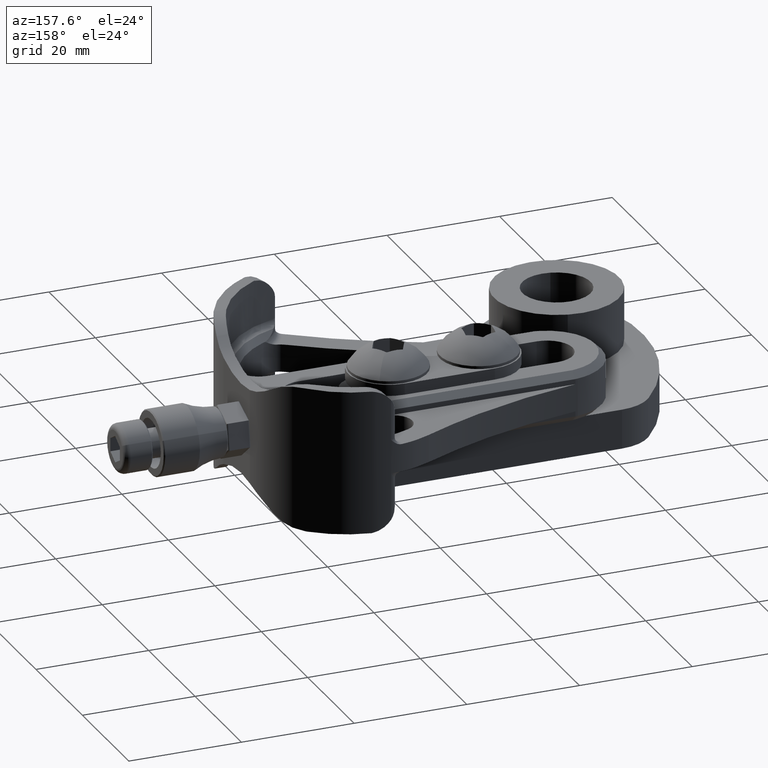
[diagram: clean part render]
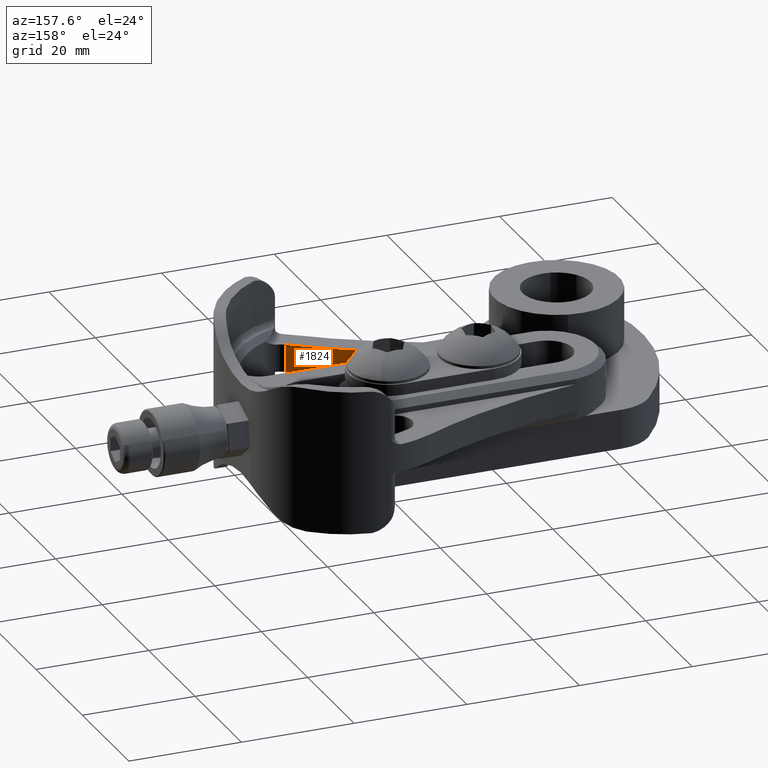
[diagram: same view with one face highlighted and labeled with its STEP entity id]
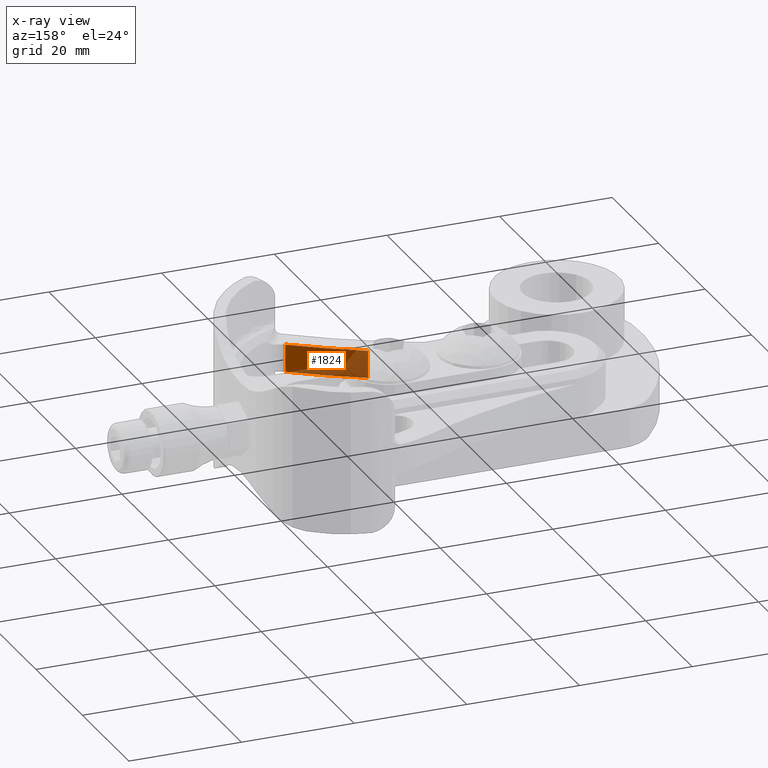
[diagram: x-ray of the same camera — body ghosted, the highlighted face saturated]
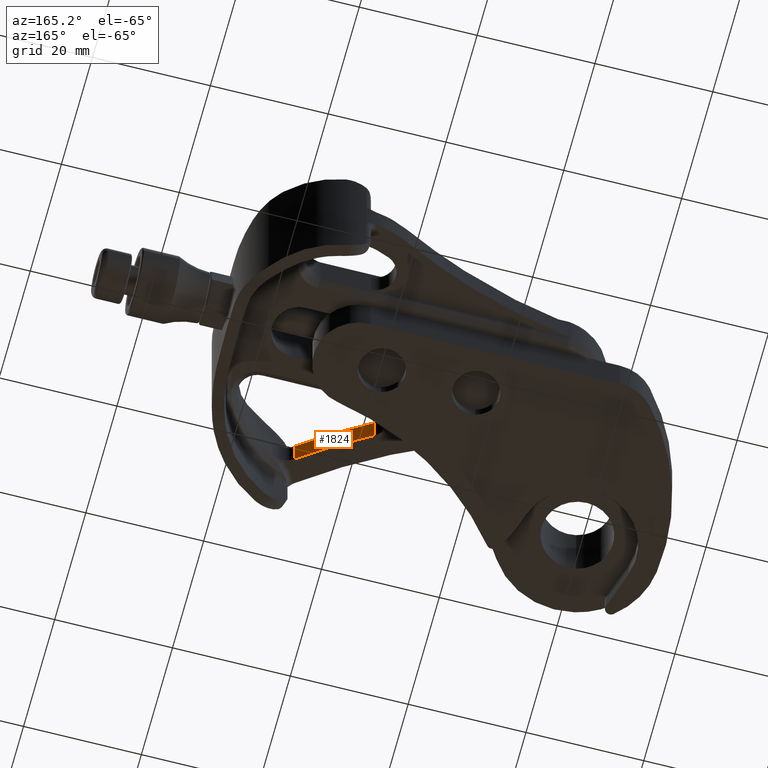
[diagram: same view with one face highlighted and labeled with its STEP entity id]
A machine part, auxiliary view. The second image highlights one B-rep face of the part: STEP entity #1824.
The next image is the same camera in x-ray: the body ghosted, the highlighted face saturated — about 40% of this face is hidden behind the body in this view.
A second angle (auxiliary view) of the same face is appended — the face is thin or edge-on in the first view.
In plain terms, the highlighted cylindrical surface (partial cylindrical patch) has radius 105.664 mm, axis along (-0, -0, -1).
Its self-contained STEP definition (entity closure, byte-faithful):
#133 = B_SPLINE_CURVE_WITH_KNOTS ( 'NONE', 3,
 ( #8982, #3886, #3149, #8314 ),
 .UNSPECIFIED., .F., .F.,
 ( 4, 4 ),
 ( 0.0000000000000000000, 1.000000000000000000 ),
 .UNSPECIFIED. ) ;
#419 = CARTESIAN_POINT ( 'NONE',  ( 1.144086642905055351, -0.6216556355081623852, -0.09599999999999973832 ) ) ;
#633 = CARTESIAN_POINT ( 'NONE',  ( 0.6883365192413608558, -0.9151791257530993429, -0.09599999999999973832 ) ) ;
#808 = VERTEX_POINT ( 'NONE', #3631 ) ;
#817 = B_SPLINE_CURVE_WITH_KNOTS ( 'NONE', 3,
 ( #8028, #2862, #9444, #5102 ),
 .UNSPECIFIED., .F., .F.,
 ( 4, 4 ),
 ( 0.0000000000000000000, 1.000000000000000000 ),
 .UNSPECIFIED. ) ;
#856 = CARTESIAN_POINT ( 'NONE',  ( 3.163914999890327984, -4.258398000273999173, 0.0000000000000000000 ) ) ;
#1209 = CARTESIAN_POINT ( 'NONE',  ( 0.8336585908207602147, -0.8075715918772459201, -0.09600000000000000200 ) ) ;
#1824 = ADVANCED_FACE ( 'NONE', ( #7189 ), #8869, .T. ) ;
#2121 = CARTESIAN_POINT ( 'NONE',  ( 0.6883365192413608558, -0.9151791257530993429, 0.09599999999999973832 ) ) ;
#2259 = VERTEX_POINT ( 'NONE', #633 ) ;
#2286 = DIRECTION ( 'NONE',  ( -1.942569979106741571E-29, 5.152247787224733354E-30, 1.000000000000000000 ) ) ;
#2547 = CARTESIAN_POINT ( 'NONE',  ( 1.144086642905054685, -0.6216556355081624963, 0.09599999999999971056 ) ) ;
#2614 = ORIENTED_EDGE ( 'NONE', *, *, #3611, .T. ) ;
#2788 = CARTESIAN_POINT ( 'NONE',  ( 0.9857826043481583422, -0.7095792813597220361, 0.09599999999999973832 ) ) ;
#2862 = CARTESIAN_POINT ( 'NONE',  ( 1.144086740476101260, -0.6216558112344892084, 0.03200000000000000067 ) ) ;
#3149 = CARTESIAN_POINT ( 'NONE',  ( 0.6883366129316528248, -0.9151792522571609023, 0.03200000000000000067 ) ) ;
#3475 = CARTESIAN_POINT ( 'NONE',  ( 0.8338658951666586550, -0.8074204283672217208, 0.09599999999999973832 ) ) ;
#3611 = EDGE_CURVE ( 'NONE', #808, #2259, #8501, .T. ) ;
#3631 = CARTESIAN_POINT ( 'NONE',  ( 1.144086642905055351, -0.6216556355081623852, -0.09599999999999973832 ) ) ;
#3886 = CARTESIAN_POINT ( 'NONE',  ( 0.6883366129316528248, -0.9151792522571609023, -0.03200000000000000067 ) ) ;
#4016 = CARTESIAN_POINT ( 'NONE',  ( 1.144086642905054685, -0.6216556355081624963, 0.09599999999999971056 ) ) ;
#4359 = EDGE_CURVE ( 'NONE', #5754, #5526, #9147, .T. ) ;
#5102 = CARTESIAN_POINT ( 'NONE',  ( 1.144086642905055351, -0.6216556355081623852, -0.09599999999999973832 ) ) ;
#5185 = ORIENTED_EDGE ( 'NONE', *, *, #4359, .F. ) ;
#5526 = VERTEX_POINT ( 'NONE', #7097 ) ;
#5754 = VERTEX_POINT ( 'NONE', #2547 ) ;
#6003 = ORIENTED_EDGE ( 'NONE', *, *, #7857, .T. ) ;
#6186 = ORIENTED_EDGE ( 'NONE', *, *, #8536, .T. ) ;
#7097 = CARTESIAN_POINT ( 'NONE',  ( 0.6883365192413608558, -0.9151791257530993429, 0.09599999999999973832 ) ) ;
#7189 = FACE_OUTER_BOUND ( 'NONE', #8457, .T. ) ;
#7360 = DIRECTION ( 'NONE',  ( 1.000000000000000000, 0.0000000000000000000, -1.932709217791477522E-29 ) ) ;
#7702 = AXIS2_PLACEMENT_3D ( 'NONE', #856, #2286, #7360 ) ;
#7857 = EDGE_CURVE ( 'NONE', #5754, #808, #817, .T. ) ;
#8028 = CARTESIAN_POINT ( 'NONE',  ( 1.144086642905054685, -0.6216556355081624963, 0.09599999999999971056 ) ) ;
#8314 = CARTESIAN_POINT ( 'NONE',  ( 0.6883365192413608558, -0.9151791257530993429, 0.09599999999999973832 ) ) ;
#8457 = EDGE_LOOP ( 'NONE', ( #2614, #6186, #5185, #6003 ) ) ;
#8501 = B_SPLINE_CURVE_WITH_KNOTS ( 'NONE', 3,
 ( #419, #8644, #1209, #8708 ),
 .UNSPECIFIED., .F., .F.,
 ( 4, 4 ),
 ( 0.0000000000000000000, 1.000000000000000000 ),
 .UNSPECIFIED. ) ;
#8536 = EDGE_CURVE ( 'NONE', #2259, #5526, #133, .T. ) ;
#8644 = CARTESIAN_POINT ( 'NONE',  ( 0.9860059782473408196, -0.7094530688409513841, -0.09600000000000000200 ) ) ;
#8708 = CARTESIAN_POINT ( 'NONE',  ( 0.6883365192413608558, -0.9151791257530993429, -0.09599999999999973832 ) ) ;
#8869 = CYLINDRICAL_SURFACE ( 'NONE', #7702, 4.159999993638002991 ) ;
#8982 = CARTESIAN_POINT ( 'NONE',  ( 0.6883365192413608558, -0.9151791257530993429, -0.09599999999999973832 ) ) ;
#9147 = B_SPLINE_CURVE_WITH_KNOTS ( 'NONE', 3,
 ( #4016, #2788, #3475, #2121 ),
 .UNSPECIFIED., .F., .F.,
 ( 4, 4 ),
 ( 0.0000000000000000000, 1.000000000000000000 ),
 .UNSPECIFIED. ) ;
#9444 = CARTESIAN_POINT ( 'NONE',  ( 1.144086740476101260, -0.6216558112344892084, -0.03200000000000000067 ) ) ;